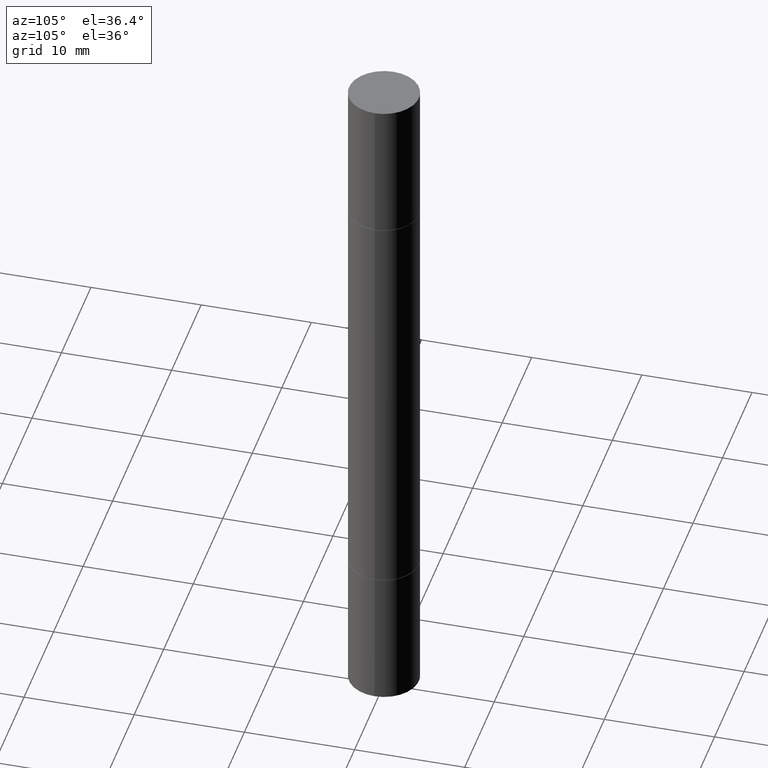
[diagram: clean part render]
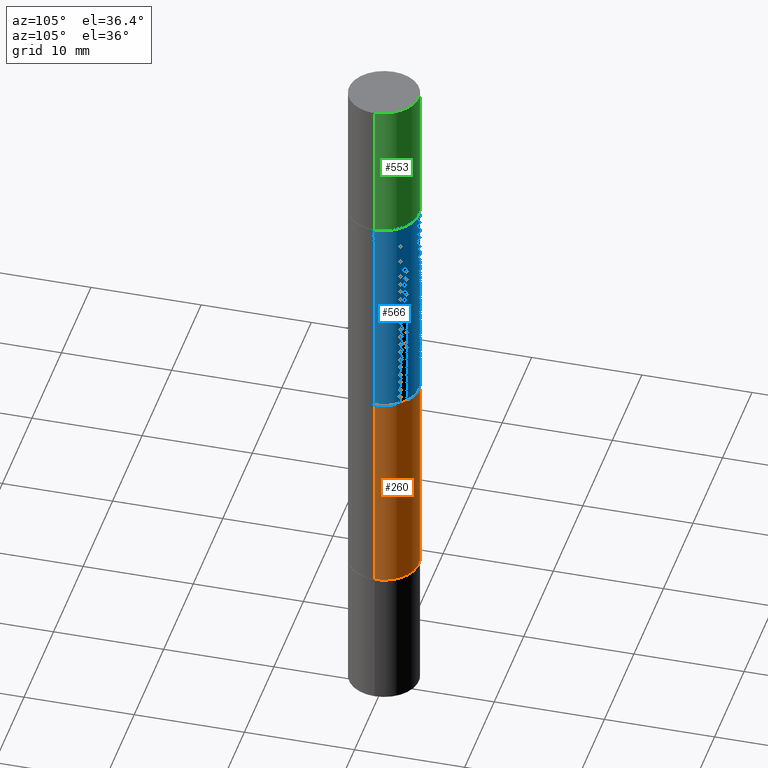
[diagram: same view with three faces highlighted in distinct colors, each labeled with its STEP entity id]
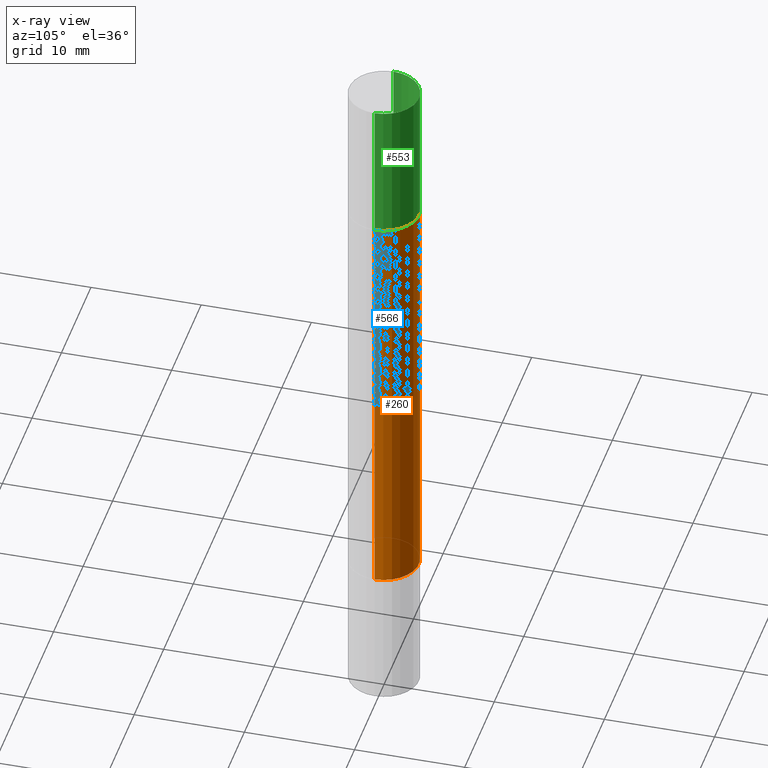
[diagram: x-ray of the same camera — body ghosted, the three highlighted faces saturated]
A machine part, auxiliary view with three faces highlighted in distinct colors.
The next image is the same camera in x-ray (body ghosted, the three faces saturated) — at least one of them is partly hidden behind the body in this view.
Their STEP definitions:

[orange] entity #260 — the highlighted cylindrical surface (edge-blend (fillet) strip) has radius 3.175 mm, axis along (-0, -0, -1).
#14 = CARTESIAN_POINT ( 'NONE',  ( 4.888492143564087591E-29, -1.748176755301667838E-15, -0.5009999999999996678 ) ) ;
#27 = CYLINDRICAL_SURFACE ( 'NONE', #621, 0.1249999999999998612 ) ;
#33 = DIRECTION ( 'NONE',  ( -2.445468806185136597E-29, 3.491481338843145583E-15, 1.000000000000000000 ) ) ;
#36 = VERTEX_POINT ( 'NONE', #51 ) ;
#51 = CARTESIAN_POINT ( 'NONE',  ( -0.1249999999999999861, -8.906145055802259979E-16, -0.5009999999999996678 ) ) ;
#70 = DIRECTION ( 'NONE',  ( 1.000000000000000000, -6.982962677686267499E-15, 0.000000000000000000 ) ) ;
#97 = VERTEX_POINT ( 'NONE', #419 ) ;
#99 = AXIS2_PLACEMENT_3D ( 'NONE', #14, #593, #70 ) ;
#102 = AXIS2_PLACEMENT_3D ( 'NONE', #282, #33, #389 ) ;
#108 = CARTESIAN_POINT ( 'NONE',  ( -0.1249999999999998612, -7.872902438272180196E-15, -2.499999999999999556 ) ) ;
#119 = CARTESIAN_POINT ( 'NONE',  ( 0.1249999999999999861, -7.852341531058230708E-15, -1.998999999999999888 ) ) ;
#234 = CIRCLE ( 'NONE', #99, 0.1249999999999999861 ) ;
#240 = DIRECTION ( 'NONE',  ( -2.445468806185136597E-29, -3.492890411551752677E-15, -1.000000000000000000 ) ) ;
#260 = ADVANCED_FACE ( 'NONE', ( #287 ), #27, .T. ) ;
#282 = CARTESIAN_POINT ( 'NONE',  ( 4.888492143564087591E-29, -6.979471196347447369E-15, -1.998999999999999888 ) ) ;
#287 = FACE_OUTER_BOUND ( 'NONE', #471, .T. ) ;
#314 = LINE ( 'NONE', #108, #392 ) ;
#318 = ORIENTED_EDGE ( 'NONE', *, *, #358, .F. ) ;
#326 = DIRECTION ( 'NONE',  ( -2.445468806185136877E-29, -3.492890411551753071E-15, -1.000000000000000000 ) ) ;
#335 = LINE ( 'NONE', #497, #404 ) ;
#350 = CIRCLE ( 'NONE', #102, 0.1249999999999999861 ) ;
#358 = EDGE_CURVE ( 'NONE', #385, #36, #234, .T. ) ;
#365 = VERTEX_POINT ( 'NONE', #119 ) ;
#385 = VERTEX_POINT ( 'NONE', #515 ) ;
#389 = DIRECTION ( 'NONE',  ( 1.000000000000000000, -6.982962677686263555E-15, 0.000000000000000000 ) ) ;
#392 = VECTOR ( 'NONE', #326, 39.37007874015748143 ) ;
#404 = VECTOR ( 'NONE', #558, 39.37007874015748143 ) ;
#419 = CARTESIAN_POINT ( 'NONE',  ( -0.1249999999999999861, -3.506789423832488265E-15, -1.998999999999999888 ) ) ;
#434 = EDGE_CURVE ( 'NONE', #36, #97, #314, .T. ) ;
#449 = DIRECTION ( 'NONE',  ( 1.000000000000000000, -6.982962677686262766E-15, 0.000000000000000000 ) ) ;
#461 = ORIENTED_EDGE ( 'NONE', *, *, #675, .T. ) ;
#471 = EDGE_LOOP ( 'NONE', ( #658, #318, #461, #567 ) ) ;
#497 = CARTESIAN_POINT ( 'NONE',  ( 0.1249999999999998612, -9.603335022704403402E-15, -2.499999999999999556 ) ) ;
#502 = CARTESIAN_POINT ( 'NONE',  ( 0.000000000000000000, -8.730464687993621641E-15, -2.499999999999999556 ) ) ;
#515 = CARTESIAN_POINT ( 'NONE',  ( 0.1249999999999999861, -2.621047090012450585E-15, -0.5009999999999996678 ) ) ;
#558 = DIRECTION ( 'NONE',  ( -2.445468806185136877E-29, -3.492890411551753071E-15, -1.000000000000000000 ) ) ;
#567 = ORIENTED_EDGE ( 'NONE', *, *, #647, .T. ) ;
#593 = DIRECTION ( 'NONE',  ( 2.445468806185136597E-29, 3.492890411551752677E-15, 1.000000000000000000 ) ) ;
#621 = AXIS2_PLACEMENT_3D ( 'NONE', #502, #240, #449 ) ;
#647 = EDGE_CURVE ( 'NONE', #365, #97, #350, .T. ) ;
#658 = ORIENTED_EDGE ( 'NONE', *, *, #434, .F. ) ;
#675 = EDGE_CURVE ( 'NONE', #385, #365, #335, .T. ) ;

[blue] entity #566 — the highlighted cylindrical surface (edge-blend (fillet) strip) has radius 3.175 mm, axis along (-0, -0, -1).
#16 = CARTESIAN_POINT ( 'NONE',  ( 3.056836007731420185E-29, -4.364351673553931682E-15, -1.249999999999999778 ) ) ;
#24 = EDGE_LOOP ( 'NONE', ( #676, #270, #159, #377 ) ) ;
#58 = VERTEX_POINT ( 'NONE', #105 ) ;
#105 = CARTESIAN_POINT ( 'NONE',  ( -0.1249999999999998612, -2.198701964706358019E-15, -1.249999999999999778 ) ) ;
#121 = AXIS2_PLACEMENT_3D ( 'NONE', #651, #273, #585 ) ;
#132 = DIRECTION ( 'NONE',  ( -2.445468806185136877E-29, -3.492890411551753071E-15, -1.000000000000000000 ) ) ;
#142 = VERTEX_POINT ( 'NONE', #373 ) ;
#159 = ORIENTED_EDGE ( 'NONE', *, *, #264, .T. ) ;
#170 = CARTESIAN_POINT ( 'NONE',  ( -0.1249999999999999861, -8.906145055802259979E-16, -0.5009999999999996678 ) ) ;
#175 = DIRECTION ( 'NONE',  ( 0.000000000000000000, 1.000000000000000000, -4.370956789862825883E-15 ) ) ;
#182 = LINE ( 'NONE', #601, #523 ) ;
#193 = CARTESIAN_POINT ( 'NONE',  ( 0.1249999999999998612, -3.929134549138581225E-15, -1.249999999999999778 ) ) ;
#264 = EDGE_CURVE ( 'NONE', #142, #679, #182, .T. ) ;
#270 = ORIENTED_EDGE ( 'NONE', *, *, #668, .F. ) ;
#273 = DIRECTION ( 'NONE',  ( -2.445468806185136597E-29, -3.492890411551752677E-15, -1.000000000000000000 ) ) ;
#330 = VECTOR ( 'NONE', #410, 39.37007874015748143 ) ;
#332 = DIRECTION ( 'NONE',  ( -0.000000000000000000, -3.492185875197449130E-15, -1.000000000000000000 ) ) ;
#333 = FACE_OUTER_BOUND ( 'NONE', #24, .T. ) ;
#355 = CARTESIAN_POINT ( 'NONE',  ( -0.1249999999999998612, -7.872902438272180196E-15, -2.499999999999999556 ) ) ;
#367 = EDGE_CURVE ( 'NONE', #58, #679, #403, .T. ) ;
#371 = CYLINDRICAL_SURFACE ( 'NONE', #121, 0.1249999999999998612 ) ;
#373 = CARTESIAN_POINT ( 'NONE',  ( 0.1249999999999999861, -2.621047090012450585E-15, -0.5009999999999996678 ) ) ;
#377 = ORIENTED_EDGE ( 'NONE', *, *, #367, .F. ) ;
#396 = EDGE_CURVE ( 'NONE', #546, #58, #624, .T. ) ;
#403 = CIRCLE ( 'NONE', #661, 0.1249999999999998612 ) ;
#410 = DIRECTION ( 'NONE',  ( -2.445468806185136877E-29, -3.492890411551753071E-15, -1.000000000000000000 ) ) ;
#458 = DIRECTION ( 'NONE',  ( 1.000000000000000000, -6.982962677686267499E-15, 0.000000000000000000 ) ) ;
#500 = CIRCLE ( 'NONE', #623, 0.1249999999999999861 ) ;
#523 = VECTOR ( 'NONE', #132, 39.37007874015748143 ) ;
#546 = VERTEX_POINT ( 'NONE', #170 ) ;
#555 = CARTESIAN_POINT ( 'NONE',  ( 4.888492143564087591E-29, -1.748176755301667838E-15, -0.5009999999999996678 ) ) ;
#566 = ADVANCED_FACE ( 'NONE', ( #333 ), #371, .T. ) ;
#585 = DIRECTION ( 'NONE',  ( 1.000000000000000000, -6.982962677686262766E-15, 0.000000000000000000 ) ) ;
#601 = CARTESIAN_POINT ( 'NONE',  ( 0.1249999999999998612, -9.603335022704403402E-15, -2.499999999999999556 ) ) ;
#605 = DIRECTION ( 'NONE',  ( 2.445468806185136597E-29, 3.492890411551752677E-15, 1.000000000000000000 ) ) ;
#623 = AXIS2_PLACEMENT_3D ( 'NONE', #555, #605, #458 ) ;
#624 = LINE ( 'NONE', #355, #330 ) ;
#651 = CARTESIAN_POINT ( 'NONE',  ( 0.000000000000000000, -8.730464687993621641E-15, -2.499999999999999556 ) ) ;
#661 = AXIS2_PLACEMENT_3D ( 'NONE', #16, #332, #175 ) ;
#668 = EDGE_CURVE ( 'NONE', #142, #546, #500, .T. ) ;
#676 = ORIENTED_EDGE ( 'NONE', *, *, #396, .F. ) ;
#679 = VERTEX_POINT ( 'NONE', #193 ) ;

[green] entity #553 — the highlighted cylindrical surface (edge-blend (fillet) strip) has radius 3.175 mm, axis along (-0, -0, -1).
#23 = VECTOR ( 'NONE', #576, 39.37007874015748143 ) ;
#28 = CARTESIAN_POINT ( 'NONE',  ( 0.1250000000000000000, -8.711089938250227947E-16, 5.463695987328526437E-16 ) ) ;
#35 = EDGE_CURVE ( 'NONE', #630, #415, #484, .T. ) ;
#41 = ORIENTED_EDGE ( 'NONE', *, *, #450, .T. ) ;
#60 = CIRCLE ( 'NONE', #431, 0.1250000000000000000 ) ;
#69 = CARTESIAN_POINT ( 'NONE',  ( 0.1250000000000000000, -2.617554199600898443E-15, -0.4999999999999996114 ) ) ;
#75 = EDGE_CURVE ( 'NONE', #667, #536, #345, .T. ) ;
#84 = EDGE_CURVE ( 'NONE', #667, #630, #60, .T. ) ;
#87 = DIRECTION ( 'NONE',  ( -2.445468806185136877E-29, -3.492890411551753071E-15, -1.000000000000000000 ) ) ;
#125 = DIRECTION ( 'NONE',  ( -2.445468806185136597E-29, -3.492890411551752677E-15, -1.000000000000000000 ) ) ;
#173 = DIRECTION ( 'NONE',  ( 1.000000000000000000, -6.982962677686266711E-15, 0.000000000000000000 ) ) ;
#199 = AXIS2_PLACEMENT_3D ( 'NONE', #380, #384, #173 ) ;
#206 = EDGE_LOOP ( 'NONE', ( #572, #465, #562, #41 ) ) ;
#254 = VECTOR ( 'NONE', #87, 39.37007874015748143 ) ;
#266 = CARTESIAN_POINT ( 'NONE',  ( 0.1250000000000000000, -9.603335022704404980E-15, -2.499999999999999556 ) ) ;
#271 = FACE_OUTER_BOUND ( 'NONE', #206, .T. ) ;
#317 = CARTESIAN_POINT ( 'NONE',  ( 6.113672015462842613E-29, 1.761340885760521790E-18, 5.463695987328526437E-16 ) ) ;
#324 = CARTESIAN_POINT ( 'NONE',  ( -0.1250000000000000000, -1.389901228073636467E-17, -0.4999999999999996114 ) ) ;
#345 = LINE ( 'NONE', #266, #254 ) ;
#380 = CARTESIAN_POINT ( 'NONE',  ( 4.890937612370273194E-29, -1.744683864890115301E-15, -0.4999999999999996114 ) ) ;
#381 = CIRCLE ( 'NONE', #199, 0.1250000000000000000 ) ;
#384 = DIRECTION ( 'NONE',  ( 2.445468806185136597E-29, 3.492890411551752677E-15, 1.000000000000000000 ) ) ;
#415 = VERTEX_POINT ( 'NONE', #324 ) ;
#422 = DIRECTION ( 'NONE',  ( 1.000000000000000000, -6.982962677686266711E-15, 0.000000000000000000 ) ) ;
#431 = AXIS2_PLACEMENT_3D ( 'NONE', #317, #509, #422 ) ;
#450 = EDGE_CURVE ( 'NONE', #536, #415, #381, .T. ) ;
#452 = AXIS2_PLACEMENT_3D ( 'NONE', #543, #125, #537 ) ;
#465 = ORIENTED_EDGE ( 'NONE', *, *, #84, .F. ) ;
#484 = LINE ( 'NONE', #634, #23 ) ;
#506 = CARTESIAN_POINT ( 'NONE',  ( -0.1250000000000000000, -1.389901228073636467E-17, 5.463695987328557991E-16 ) ) ;
#509 = DIRECTION ( 'NONE',  ( 2.445468806185136597E-29, 3.492890411551752677E-15, 1.000000000000000000 ) ) ;
#536 = VERTEX_POINT ( 'NONE', #69 ) ;
#537 = DIRECTION ( 'NONE',  ( 1.000000000000000000, -6.982962677686270655E-15, 0.000000000000000000 ) ) ;
#543 = CARTESIAN_POINT ( 'NONE',  ( 0.000000000000000000, -8.730464687993621641E-15, -2.499999999999999556 ) ) ;
#553 = ADVANCED_FACE ( 'NONE', ( #271 ), #597, .T. ) ;
#562 = ORIENTED_EDGE ( 'NONE', *, *, #75, .T. ) ;
#572 = ORIENTED_EDGE ( 'NONE', *, *, #35, .F. ) ;
#576 = DIRECTION ( 'NONE',  ( -2.445468806185136877E-29, -3.492890411551753071E-15, -1.000000000000000000 ) ) ;
#597 = CYLINDRICAL_SURFACE ( 'NONE', #452, 0.1250000000000000000 ) ;
#630 = VERTEX_POINT ( 'NONE', #506 ) ;
#634 = CARTESIAN_POINT ( 'NONE',  ( -0.1250000000000000000, -7.872902438272180196E-15, -2.499999999999999556 ) ) ;
#667 = VERTEX_POINT ( 'NONE', #28 ) ;